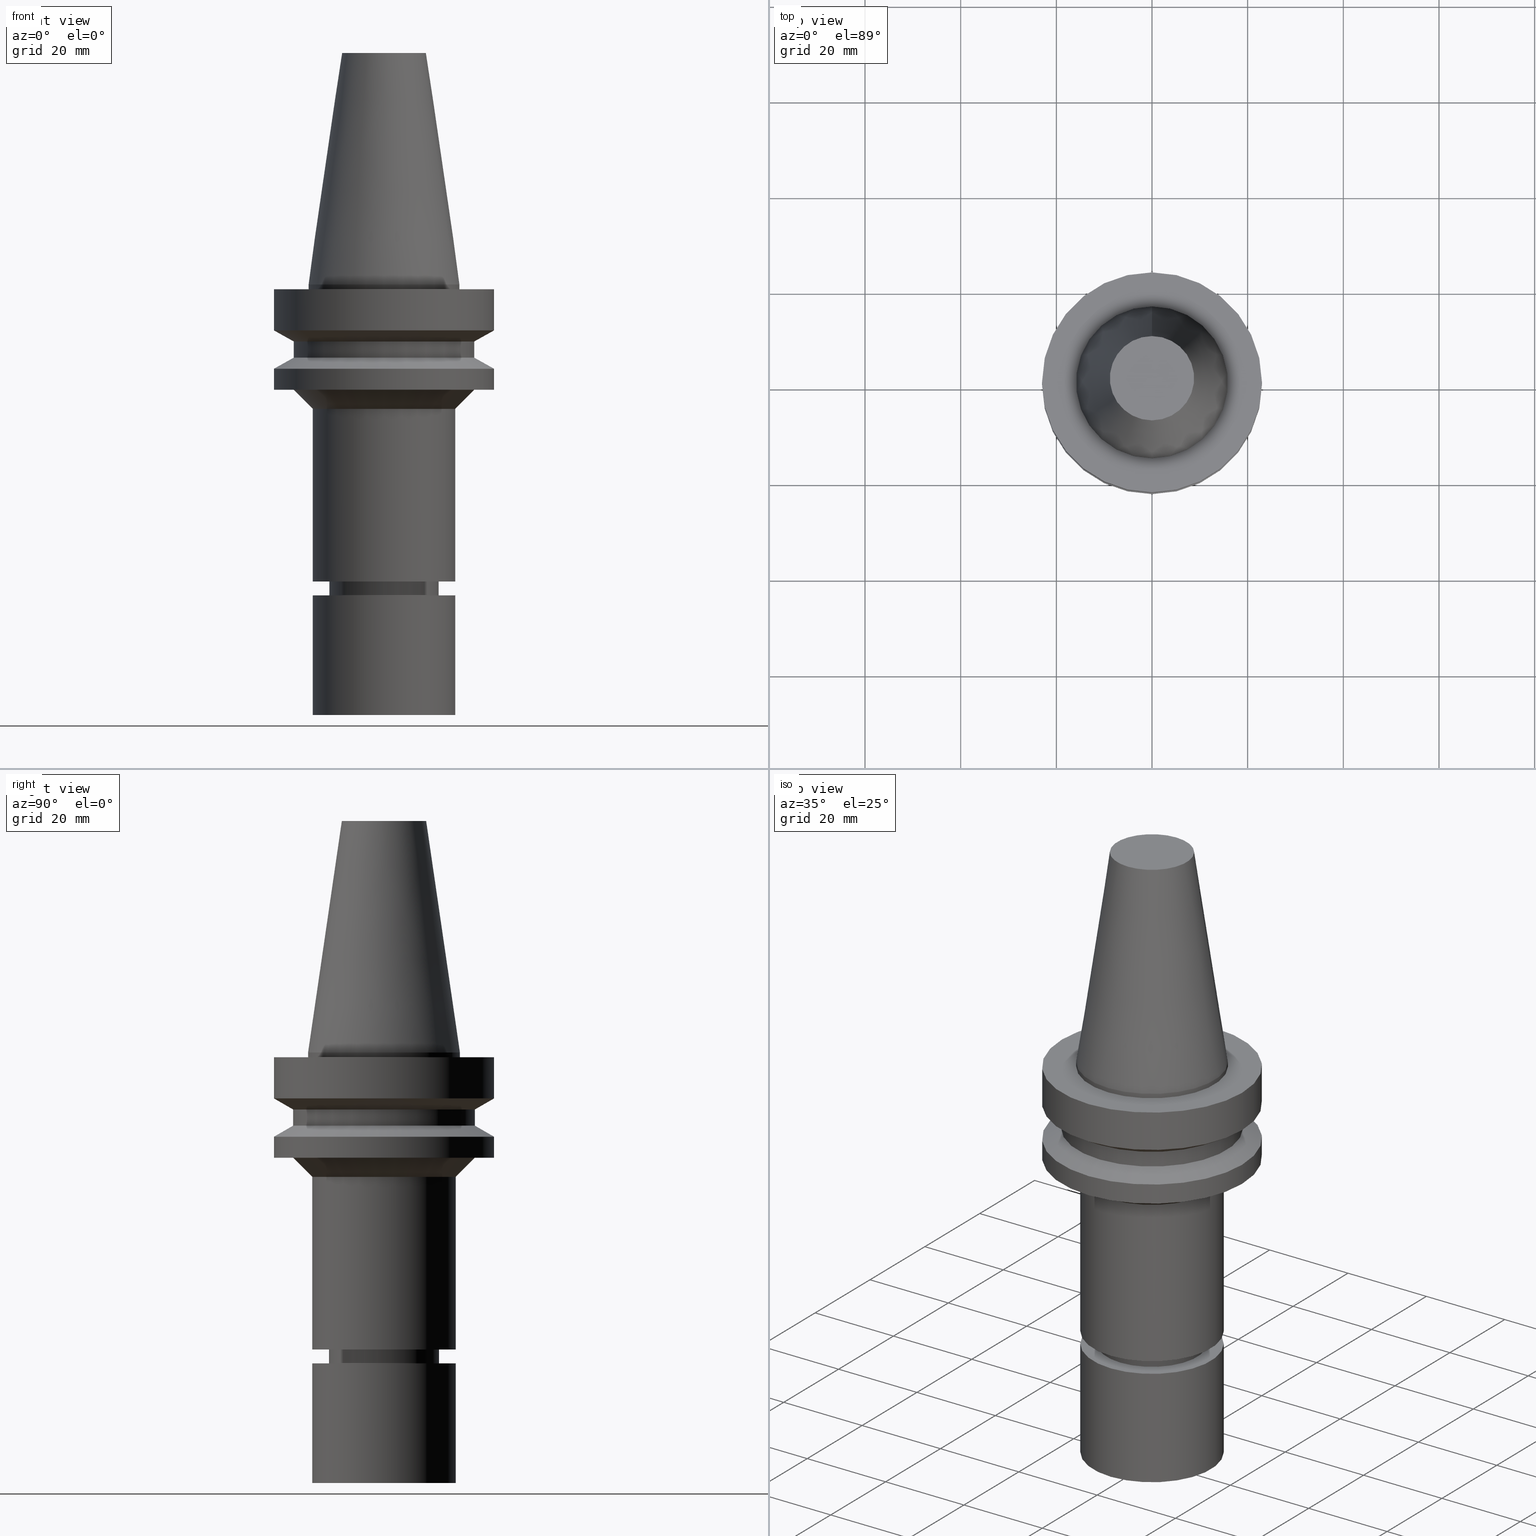
[diagram: canonical four-view strip — front | top / right | iso, engineering-drawing reading convention]
A machine part, canonical four-view strip (front | top / right | iso — engineering-drawing reading convention). The complete STEP part file that produces these views, byte-faithful:
ISO-10303-21;
HEADER;
FILE_DESCRIPTION((''),'1');
FILE_NAME('V:/90_\X2\53D65F9730C730FC30BF\X0\/00_\X2\6DE18DEF30C730FC30BF\X0\/ALL/BBT-BKUS\X2\FF76FF80FF9BFF78FF9E752852A05DE556F3\X0\201801/BBT30-MEGAER/BBT30-MEGAER16-90NL.stp','2018-02-02T07:11:08',(''),(''),'Spatial Interop R21 SP3','Kubotek KeyCreator 2011 V10.0.2 (22737)',' ');
FILE_SCHEMA(('automotive_design'));
ENDSEC;
DATA;
#1=MECHANICAL_DESIGN_GEOMETRIC_PRESENTATION_REPRESENTATION(' ',(#14,#15,#16,#17,#18,#19,#20,#21,#22,#23,#24,#25,#26,#27,#28,#29,#30,#31,#32,#33,#34,#35,#36,#37,#38,#39,#40,#41,#42,#43,#44,#45,#46,#47,#48,#49,#50,#51,#52,#53,#54,#55),#10);
#2=PRODUCT_DEFINITION_CONTEXT('',#56,'design');
#3=APPLICATION_PROTOCOL_DEFINITION('INTERNATIONAL STANDARD','automotive_design',1994,#56);
#4=PRODUCT_CATEGORY_RELATIONSHIP('NONE','NONE',#57,#58);
#5=SHAPE_DEFINITION_REPRESENTATION(#59,#60);
#6=PRODUCT_DEFINITION_CONTEXT('',#61,'design');
#7=APPLICATION_PROTOCOL_DEFINITION('INTERNATIONAL STANDARD','automotive_design',1994,#61);
#8=PRODUCT_CATEGORY_RELATIONSHIP('NONE','NONE',#62,#63);
#9=SHAPE_DEFINITION_REPRESENTATION(#64,#65);
#10= (GEOMETRIC_REPRESENTATION_CONTEXT(3)GLOBAL_UNCERTAINTY_ASSIGNED_CONTEXT((#68))GLOBAL_UNIT_ASSIGNED_CONTEXT((#70,#71,#72))REPRESENTATION_CONTEXT('NONE','WORKSPACE'));
#14=STYLED_ITEM('',(#74,#75),#76);
#15=STYLED_ITEM('',(#77),#78);
#16=STYLED_ITEM('',(#79),#80);
#17=STYLED_ITEM('',(#81,#82),#83);
#18=STYLED_ITEM('',(#84,#85),#86);
#19=STYLED_ITEM('',(#87,#88),#89);
#20=STYLED_ITEM('',(#90,#91),#92);
#21=STYLED_ITEM('',(#93,#94),#95);
#22=STYLED_ITEM('',(#96),#97);
#23=STYLED_ITEM('',(#98),#99);
#24=STYLED_ITEM('',(#100),#101);
#25=STYLED_ITEM('',(#102),#103);
#26=STYLED_ITEM('',(#104,#105),#106);
#27=STYLED_ITEM('',(#107,#108),#109);
#28=STYLED_ITEM('',(#110,#111),#112);
#29=STYLED_ITEM('',(#113),#114);
#30=STYLED_ITEM('',(#115),#116);
#31=STYLED_ITEM('',(#117,#118),#119);
#32=STYLED_ITEM('',(#120),#121);
#33=STYLED_ITEM('',(#122,#123),#124);
#34=STYLED_ITEM('',(#125,#126),#127);
#35=STYLED_ITEM('',(#128,#129),#130);
#36=STYLED_ITEM('',(#131),#132);
#37=STYLED_ITEM('',(#133,#134),#135);
#38=STYLED_ITEM('',(#136),#137);
#39=STYLED_ITEM('',(#138),#139);
#40=STYLED_ITEM('',(#140),#141);
#41=STYLED_ITEM('',(#142,#143),#144);
#42=STYLED_ITEM('',(#145,#146),#147);
#43=STYLED_ITEM('',(#148),#149);
#44=STYLED_ITEM('',(#150),#151);
#45=STYLED_ITEM('',(#152,#153),#154);
#46=STYLED_ITEM('',(#155),#156);
#47=STYLED_ITEM('',(#157),#158);
#48=STYLED_ITEM('',(#159,#160),#161);
#49=STYLED_ITEM('',(#162,#163),#164);
#50=STYLED_ITEM('',(#165,#166),#167);
#51=STYLED_ITEM('',(#168,#169),#170);
#52=STYLED_ITEM('',(#171),#172);
#53=STYLED_ITEM('',(#173,#174),#175);
#54=STYLED_ITEM('',(#176,#177),#178);
#55=STYLED_ITEM('',(#179),#180);
#56=APPLICATION_CONTEXT(' ');
#57=PRODUCT_CATEGORY('part','NONE');
#58=PRODUCT_RELATED_PRODUCT_CATEGORY('detail',' ',(#181));
#59=PRODUCT_DEFINITION_SHAPE('NONE','NONE',#182);
#60=ADVANCED_BREP_SHAPE_REPRESENTATION('Unnamed[1]',(#76,#183),#10);
#61=APPLICATION_CONTEXT(' ');
#62=PRODUCT_CATEGORY('part','NONE');
#63=PRODUCT_RELATED_PRODUCT_CATEGORY('detail',' ',(#184));
#64=PRODUCT_DEFINITION_SHAPE('NONE','NONE',#185);
#65=ADVANCED_BREP_SHAPE_REPRESENTATION('Unnamed[1]',(#154,#186),#10);
#68=UNCERTAINTY_MEASURE_WITH_UNIT(LENGTH_MEASURE(1.0E-006),#70,'','');
#70= (CONVERSION_BASED_UNIT('MILLIMETRE',#189)LENGTH_UNIT()NAMED_UNIT(#192));
#71= (NAMED_UNIT(#194)PLANE_ANGLE_UNIT()SI_UNIT($,.RADIAN.));
#72= (NAMED_UNIT(#194)SOLID_ANGLE_UNIT()SI_UNIT($,.STERADIAN.));
#74=PRESENTATION_STYLE_ASSIGNMENT((#200));
#75=PRESENTATION_STYLE_ASSIGNMENT((#201));
#76=MANIFOLD_SOLID_BREP('Unnamed[1]',#202);
#77=PRESENTATION_STYLE_ASSIGNMENT((#203));
#78=EDGE_CURVE('Unnamed[1]',#204,#204,#205,.T.);
#79=PRESENTATION_STYLE_ASSIGNMENT((#206));
#80=EDGE_CURVE('Unnamed[1]',#207,#207,#208,.T.);
#81=PRESENTATION_STYLE_ASSIGNMENT((#209));
#82=PRESENTATION_STYLE_ASSIGNMENT((#210));
#83=ADVANCED_FACE('Unnamed[1]',(#211,#212),#213,.T.);
#84=PRESENTATION_STYLE_ASSIGNMENT((#214));
#85=PRESENTATION_STYLE_ASSIGNMENT((#215));
#86=ADVANCED_FACE('Unnamed[1]',(#216,#217),#218,.T.);
#87=PRESENTATION_STYLE_ASSIGNMENT((#219));
#88=PRESENTATION_STYLE_ASSIGNMENT((#220));
#89=ADVANCED_FACE('Unnamed[1]',(#221,#222),#223,.T.);
#90=PRESENTATION_STYLE_ASSIGNMENT((#224));
#91=PRESENTATION_STYLE_ASSIGNMENT((#225));
#92=ADVANCED_FACE('Unnamed[1]',(#226,#227),#228,.T.);
#93=PRESENTATION_STYLE_ASSIGNMENT((#229));
#94=PRESENTATION_STYLE_ASSIGNMENT((#230));
#95=ADVANCED_FACE('Unnamed[1]',(#231),#232,.T.);
#96=PRESENTATION_STYLE_ASSIGNMENT((#233));
#97=EDGE_CURVE('Unnamed[1]',#234,#234,#235,.T.);
#98=PRESENTATION_STYLE_ASSIGNMENT((#236));
#99=EDGE_CURVE('Unnamed[1]',#237,#237,#238,.T.);
#100=PRESENTATION_STYLE_ASSIGNMENT((#239));
#101=EDGE_CURVE('Unnamed[1]',#240,#240,#241,.T.);
#102=PRESENTATION_STYLE_ASSIGNMENT((#242));
#103=EDGE_CURVE('Unnamed[1]',#243,#243,#244,.T.);
#104=PRESENTATION_STYLE_ASSIGNMENT((#245));
#105=PRESENTATION_STYLE_ASSIGNMENT((#246));
#106=ADVANCED_FACE('Unnamed[1]',(#247,#248),#249,.T.);
#107=PRESENTATION_STYLE_ASSIGNMENT((#250));
#108=PRESENTATION_STYLE_ASSIGNMENT((#251));
#109=ADVANCED_FACE('Unnamed[1]',(#252,#253),#254,.T.);
#110=PRESENTATION_STYLE_ASSIGNMENT((#255));
#111=PRESENTATION_STYLE_ASSIGNMENT((#256));
#112=ADVANCED_FACE('Unnamed[1]',(#257),#258,.T.);
#113=PRESENTATION_STYLE_ASSIGNMENT((#259));
#114=EDGE_CURVE('Unnamed[1]',#260,#260,#261,.T.);
#115=PRESENTATION_STYLE_ASSIGNMENT((#262));
#116=EDGE_CURVE('Unnamed[1]',#263,#263,#264,.T.);
#117=PRESENTATION_STYLE_ASSIGNMENT((#265));
#118=PRESENTATION_STYLE_ASSIGNMENT((#266));
#119=ADVANCED_FACE('Unnamed[1]',(#267,#268),#269,.T.);
#120=PRESENTATION_STYLE_ASSIGNMENT((#270));
#121=EDGE_CURVE('Unnamed[1]',#271,#271,#272,.T.);
#122=PRESENTATION_STYLE_ASSIGNMENT((#273));
#123=PRESENTATION_STYLE_ASSIGNMENT((#274));
#124=ADVANCED_FACE('Unnamed[1]',(#275,#276),#277,.T.);
#125=PRESENTATION_STYLE_ASSIGNMENT((#278));
#126=PRESENTATION_STYLE_ASSIGNMENT((#279));
#127=ADVANCED_FACE('Unnamed[1]',(#280,#281),#282,.T.);
#128=PRESENTATION_STYLE_ASSIGNMENT((#283));
#129=PRESENTATION_STYLE_ASSIGNMENT((#284));
#130=ADVANCED_FACE('Unnamed[1]',(#285,#286),#287,.T.);
#131=PRESENTATION_STYLE_ASSIGNMENT((#288));
#132=EDGE_CURVE('Unnamed[1]',#289,#289,#290,.T.);
#133=PRESENTATION_STYLE_ASSIGNMENT((#291));
#134=PRESENTATION_STYLE_ASSIGNMENT((#292));
#135=ADVANCED_FACE('Unnamed[1]',(#293,#294),#295,.T.);
#136=PRESENTATION_STYLE_ASSIGNMENT((#296));
#137=EDGE_CURVE('Unnamed[1]',#297,#297,#298,.T.);
#138=PRESENTATION_STYLE_ASSIGNMENT((#299));
#139=EDGE_CURVE('Unnamed[1]',#300,#300,#301,.T.);
#140=PRESENTATION_STYLE_ASSIGNMENT((#302));
#141=EDGE_CURVE('Unnamed[1]',#303,#303,#304,.T.);
#142=PRESENTATION_STYLE_ASSIGNMENT((#305));
#143=PRESENTATION_STYLE_ASSIGNMENT((#306));
#144=ADVANCED_FACE('Unnamed[1]',(#307,#308),#309,.T.);
#145=PRESENTATION_STYLE_ASSIGNMENT((#310));
#146=PRESENTATION_STYLE_ASSIGNMENT((#311));
#147=ADVANCED_FACE('Unnamed[1]',(#312,#313),#314,.T.);
#148=PRESENTATION_STYLE_ASSIGNMENT((#315));
#149=EDGE_CURVE('Unnamed[1]',#316,#316,#317,.T.);
#150=PRESENTATION_STYLE_ASSIGNMENT((#318));
#151=EDGE_CURVE('Unnamed[1]',#319,#319,#320,.T.);
#152=PRESENTATION_STYLE_ASSIGNMENT((#321));
#153=PRESENTATION_STYLE_ASSIGNMENT((#322));
#154=MANIFOLD_SOLID_BREP('Unnamed[1]',#323);
#155=PRESENTATION_STYLE_ASSIGNMENT((#324));
#156=EDGE_CURVE('Unnamed[1]',#325,#325,#326,.T.);
#157=PRESENTATION_STYLE_ASSIGNMENT((#327));
#158=EDGE_CURVE('Unnamed[1]',#328,#328,#329,.T.);
#159=PRESENTATION_STYLE_ASSIGNMENT((#330));
#160=PRESENTATION_STYLE_ASSIGNMENT((#331));
#161=ADVANCED_FACE('Unnamed[1]',(#332,#333),#334,.T.);
#162=PRESENTATION_STYLE_ASSIGNMENT((#335));
#163=PRESENTATION_STYLE_ASSIGNMENT((#336));
#164=ADVANCED_FACE('Unnamed[1]',(#337),#338,.T.);
#165=PRESENTATION_STYLE_ASSIGNMENT((#339));
#166=PRESENTATION_STYLE_ASSIGNMENT((#340));
#167=ADVANCED_FACE('Unnamed[1]',(#341,#342),#343,.T.);
#168=PRESENTATION_STYLE_ASSIGNMENT((#344));
#169=PRESENTATION_STYLE_ASSIGNMENT((#345));
#170=ADVANCED_FACE('Unnamed[1]',(#346,#347),#348,.T.);
#171=PRESENTATION_STYLE_ASSIGNMENT((#349));
#172=EDGE_CURVE('Unnamed[1]',#350,#350,#351,.T.);
#173=PRESENTATION_STYLE_ASSIGNMENT((#352));
#174=PRESENTATION_STYLE_ASSIGNMENT((#353));
#175=ADVANCED_FACE('Unnamed[1]',(#354),#355,.T.);
#176=PRESENTATION_STYLE_ASSIGNMENT((#356));
#177=PRESENTATION_STYLE_ASSIGNMENT((#357));
#178=ADVANCED_FACE('Unnamed[1]',(#358,#359),#360,.T.);
#179=PRESENTATION_STYLE_ASSIGNMENT((#361));
#180=EDGE_CURVE('Unnamed[1]',#362,#362,#363,.T.);
#181=PRODUCT('Unnamed[1]','Unnamed[1]','PART-Unnamed[1]-DESC',(#364));
#182=PRODUCT_DEFINITION('NONE','NONE',#365,#2);
#183=AXIS2_PLACEMENT_3D('',#366,#367,#368);
#184=PRODUCT('Unnamed[1]','Unnamed[1]','PART-Unnamed[1]-DESC',(#369));
#185=PRODUCT_DEFINITION('NONE','NONE',#370,#6);
#186=AXIS2_PLACEMENT_3D('',#371,#372,#373);
#189=LENGTH_MEASURE_WITH_UNIT(LENGTH_MEASURE(1.0),#374);
#192=DIMENSIONAL_EXPONENTS(1.0,0.0,0.0,0.0,0.0,0.0,0.0);
#194=DIMENSIONAL_EXPONENTS(0.0,0.0,0.0,0.0,0.0,0.0,0.0);
#200=SURFACE_STYLE_USAGE(.BOTH.,#375);
#201=CURVE_STYLE('',#376,POSITIVE_LENGTH_MEASURE(1000.0),#377);
#202=CLOSED_SHELL('',(#175,#178,#147,#167,#83,#127,#86,#144,#92,#106,#119,#161,#109,#130,#170,#89,#135,#95));
#203=CURVE_STYLE('',#378,POSITIVE_LENGTH_MEASURE(1000.0),#379);
#204=VERTEX_POINT('',#380);
#205=CIRCLE('',#381,9.89999999999962);
#206=CURVE_STYLE('',#382,POSITIVE_LENGTH_MEASURE(1000.0),#383);
#207=VERTEX_POINT('',#384);
#208=CIRCLE('',#385,15.0000000000002);
#209=SURFACE_STYLE_USAGE(.BOTH.,#386);
#210=CURVE_STYLE('',#387,POSITIVE_LENGTH_MEASURE(1000.0),#388);
#211=FACE_BOUND('',#389,.T.);
#212=FACE_BOUND('',#390,.T.);
#213=CYLINDRICAL_SURFACE('',#391,23.0);
#214=SURFACE_STYLE_USAGE(.BOTH.,#392);
#215=CURVE_STYLE('',#393,POSITIVE_LENGTH_MEASURE(1000.0),#394);
#216=FACE_BOUND('',#395,.T.);
#217=FACE_BOUND('',#396,.T.);
#218=CYLINDRICAL_SURFACE('',#397,19.0);
#219=SURFACE_STYLE_USAGE(.BOTH.,#398);
#220=CURVE_STYLE('',#399,POSITIVE_LENGTH_MEASURE(1000.0),#400);
#221=FACE_BOUND('',#401,.T.);
#222=FACE_BOUND('',#402,.T.);
#223=CYLINDRICAL_SURFACE('',#403,11.0000000000001);
#224=SURFACE_STYLE_USAGE(.BOTH.,#404);
#225=CURVE_STYLE('',#405,POSITIVE_LENGTH_MEASURE(1000.0),#406);
#226=FACE_BOUND('',#407,.T.);
#227=FACE_BOUND('',#408,.T.);
#228=CYLINDRICAL_SURFACE('',#409,23.0);
#229=SURFACE_STYLE_USAGE(.BOTH.,#410);
#230=CURVE_STYLE('',#411,POSITIVE_LENGTH_MEASURE(1000.0),#412);
#231=FACE_OUTER_BOUND('',#413,.T.);
#232=PLANE('',#414);
#233=CURVE_STYLE('',#415,POSITIVE_LENGTH_MEASURE(1000.0),#416);
#234=VERTEX_POINT('',#417);
#235=CIRCLE('',#418,19.0000000000002);
#236=CURVE_STYLE('',#419,POSITIVE_LENGTH_MEASURE(1000.0),#420);
#237=VERTEX_POINT('',#421);
#238=CIRCLE('',#422,11.5000000000021);
#239=CURVE_STYLE('',#423,POSITIVE_LENGTH_MEASURE(1000.0),#424);
#240=VERTEX_POINT('',#425);
#241=CIRCLE('',#426,19.0);
#242=CURVE_STYLE('',#427,POSITIVE_LENGTH_MEASURE(1000.0),#428);
#243=VERTEX_POINT('',#429);
#244=CIRCLE('',#430,23.0);
#245=SURFACE_STYLE_USAGE(.BOTH.,#431);
#246=CURVE_STYLE('',#432,POSITIVE_LENGTH_MEASURE(1000.0),#433);
#247=FACE_BOUND('',#434,.T.);
#248=FACE_OUTER_BOUND('',#435,.T.);
#249=PLANE('',#436);
#250=SURFACE_STYLE_USAGE(.BOTH.,#437);
#251=CURVE_STYLE('',#438,POSITIVE_LENGTH_MEASURE(1000.0),#439);
#252=FACE_BOUND('',#440,.T.);
#253=FACE_OUTER_BOUND('',#441,.T.);
#254=PLANE('',#442);
#255=SURFACE_STYLE_USAGE(.BOTH.,#443);
#256=CURVE_STYLE('',#444,POSITIVE_LENGTH_MEASURE(1000.0),#445);
#257=FACE_OUTER_BOUND('',#446,.T.);
#258=PLANE('',#447);
#259=CURVE_STYLE('',#448,POSITIVE_LENGTH_MEASURE(1000.0),#449);
#260=VERTEX_POINT('',#450);
#261=CIRCLE('',#451,15.0);
#262=CURVE_STYLE('',#452,POSITIVE_LENGTH_MEASURE(1000.0),#453);
#263=VERTEX_POINT('',#454);
#264=CIRCLE('',#455,11.0000000000003);
#265=SURFACE_STYLE_USAGE(.BOTH.,#456);
#266=CURVE_STYLE('',#457,POSITIVE_LENGTH_MEASURE(1000.0),#458);
#267=FACE_BOUND('',#459,.T.);
#268=FACE_BOUND('',#460,.T.);
#269=CONICAL_SURFACE('',#461,17.0000000000002,0.785398163397445);
#270=CURVE_STYLE('',#462,POSITIVE_LENGTH_MEASURE(1000.0),#463);
#271=VERTEX_POINT('',#464);
#272=CIRCLE('',#465,15.0000000000001);
#273=SURFACE_STYLE_USAGE(.BOTH.,#466);
#274=CURVE_STYLE('',#467,POSITIVE_LENGTH_MEASURE(1000.0),#468);
#275=FACE_BOUND('',#469,.T.);
#276=FACE_BOUND('',#470,.T.);
#277=CYLINDRICAL_SURFACE('',#471,15.0);
#278=SURFACE_STYLE_USAGE(.BOTH.,#472);
#279=CURVE_STYLE('',#473,POSITIVE_LENGTH_MEASURE(1000.0),#474);
#280=FACE_BOUND('',#475,.T.);
#281=FACE_BOUND('',#476,.T.);
#282=CONICAL_SURFACE('',#477,21.0,1.04719755058881);
#283=SURFACE_STYLE_USAGE(.BOTH.,#478);
#284=CURVE_STYLE('',#479,POSITIVE_LENGTH_MEASURE(1000.0),#480);
#285=FACE_BOUND('',#481,.T.);
#286=FACE_BOUND('',#482,.T.);
#287=CYLINDRICAL_SURFACE('',#483,11.4999999999964);
#288=CURVE_STYLE('',#484,POSITIVE_LENGTH_MEASURE(1000.0),#485);
#289=VERTEX_POINT('',#486);
#290=CIRCLE('',#487,23.0);
#291=SURFACE_STYLE_USAGE(.BOTH.,#488);
#292=CURVE_STYLE('',#489,POSITIVE_LENGTH_MEASURE(1000.0),#490);
#293=FACE_BOUND('',#491,.T.);
#294=FACE_BOUND('',#492,.T.);
#295=CONICAL_SURFACE('',#493,10.4499999999999,0.523598775598233);
#296=CURVE_STYLE('',#494,POSITIVE_LENGTH_MEASURE(1000.0),#495);
#297=VERTEX_POINT('',#496);
#298=CIRCLE('',#497,19.0);
#299=CURVE_STYLE('',#498,POSITIVE_LENGTH_MEASURE(1000.0),#499);
#300=VERTEX_POINT('',#500);
#301=CIRCLE('',#501,23.0);
#302=CURVE_STYLE('',#502,POSITIVE_LENGTH_MEASURE(1000.0),#503);
#303=VERTEX_POINT('',#504);
#304=CIRCLE('',#505,15.875);
#305=SURFACE_STYLE_USAGE(.BOTH.,#506);
#306=CURVE_STYLE('',#507,POSITIVE_LENGTH_MEASURE(1000.0),#508);
#307=FACE_BOUND('',#509,.T.);
#308=FACE_BOUND('',#510,.T.);
#309=CONICAL_SURFACE('',#511,21.0,1.04719755058882);
#310=SURFACE_STYLE_USAGE(.BOTH.,#512);
#311=CURVE_STYLE('',#513,POSITIVE_LENGTH_MEASURE(1000.0),#514);
#312=FACE_BOUND('',#515,.T.);
#313=FACE_BOUND('',#516,.T.);
#314=CYLINDRICAL_SURFACE('',#517,15.875);
#315=CURVE_STYLE('',#518,POSITIVE_LENGTH_MEASURE(1000.0),#519);
#316=VERTEX_POINT('',#520);
#317=CIRCLE('',#521,11.4999999999907);
#318=CURVE_STYLE('',#522,POSITIVE_LENGTH_MEASURE(1000.0),#523);
#319=VERTEX_POINT('',#524);
#320=CIRCLE('',#525,10.9999999999999);
#321=SURFACE_STYLE_USAGE(.BOTH.,#526);
#322=CURVE_STYLE('',#527,POSITIVE_LENGTH_MEASURE(1000.0),#528);
#323=CLOSED_SHELL('',(#112,#164,#124));
#324=CURVE_STYLE('',#529,POSITIVE_LENGTH_MEASURE(1000.0),#530);
#325=VERTEX_POINT('',#531);
#326=CIRCLE('',#532,8.81650000198669);
#327=CURVE_STYLE('',#533,POSITIVE_LENGTH_MEASURE(1000.0),#534);
#328=VERTEX_POINT('',#535);
#329=CIRCLE('',#536,23.0);
#330=SURFACE_STYLE_USAGE(.BOTH.,#537);
#331=CURVE_STYLE('',#538,POSITIVE_LENGTH_MEASURE(1000.0),#539);
#332=FACE_BOUND('',#540,.T.);
#333=FACE_BOUND('',#541,.T.);
#334=CYLINDRICAL_SURFACE('',#542,15.0000000000002);
#335=SURFACE_STYLE_USAGE(.BOTH.,#543);
#336=CURVE_STYLE('',#544,POSITIVE_LENGTH_MEASURE(1000.0),#545);
#337=FACE_OUTER_BOUND('',#546,.T.);
#338=PLANE('',#547);
#339=SURFACE_STYLE_USAGE(.BOTH.,#548);
#340=CURVE_STYLE('',#549,POSITIVE_LENGTH_MEASURE(1000.0),#550);
#341=FACE_OUTER_BOUND('',#551,.T.);
#342=FACE_BOUND('',#552,.T.);
#343=PLANE('',#553);
#344=SURFACE_STYLE_USAGE(.BOTH.,#554);
#345=CURVE_STYLE('',#555,POSITIVE_LENGTH_MEASURE(1000.0),#556);
#346=FACE_BOUND('',#557,.T.);
#347=FACE_BOUND('',#558,.T.);
#348=CONICAL_SURFACE('',#559,11.250000000001,1.04719755118906);
#349=CURVE_STYLE('',#560,POSITIVE_LENGTH_MEASURE(1000.0),#561);
#350=VERTEX_POINT('',#562);
#351=CIRCLE('',#563,15.875);
#352=SURFACE_STYLE_USAGE(.BOTH.,#564);
#353=CURVE_STYLE('',#565,POSITIVE_LENGTH_MEASURE(1000.0),#566);
#354=FACE_OUTER_BOUND('',#567,.T.);
#355=PLANE('',#568);
#356=SURFACE_STYLE_USAGE(.BOTH.,#569);
#357=CURVE_STYLE('',#570,POSITIVE_LENGTH_MEASURE(1000.0),#571);
#358=FACE_BOUND('',#572,.T.);
#359=FACE_BOUND('',#573,.T.);
#360=CONICAL_SURFACE('',#574,12.3457500009933,0.144815870013618);
#361=CURVE_STYLE('',#575,POSITIVE_LENGTH_MEASURE(1000.0),#576);
#362=VERTEX_POINT('',#577);
#363=CIRCLE('',#578,15.0000000000003);
#364=PRODUCT_CONTEXT('',#56,'mechanical');
#365=PRODUCT_DEFINITION_FORMATION_WITH_SPECIFIED_SOURCE(' ','NONE',#181,.NOT_KNOWN.);
#366=CARTESIAN_POINT('',(0.0,0.0,0.0));
#367=DIRECTION('',(0.0,0.0,1.0));
#368=DIRECTION('',(1.0,0.0,0.0));
#369=PRODUCT_CONTEXT('',#61,'mechanical');
#370=PRODUCT_DEFINITION_FORMATION_WITH_SPECIFIED_SOURCE(' ','NONE',#184,.NOT_KNOWN.);
#371=CARTESIAN_POINT('',(0.0,0.0,0.0));
#372=DIRECTION('',(0.0,0.0,1.0));
#373=DIRECTION('',(1.0,0.0,0.0));
#374= (NAMED_UNIT(#192)LENGTH_UNIT()SI_UNIT(.MILLI.,.METRE.));
#375=SURFACE_SIDE_STYLE('',(#580));
#376=DRAUGHTING_PRE_DEFINED_CURVE_FONT('continuous');
#377=COLOUR_RGB('',0.0,1.0,0.0);
#378=DRAUGHTING_PRE_DEFINED_CURVE_FONT('continuous');
#379=COLOUR_RGB('',0.0,1.0,0.0);
#380=CARTESIAN_POINT('',(4.9720660045382E-015,9.89999999999963,-81.1999999999991));
#381=AXIS2_PLACEMENT_3D('',#581,#582,#583);
#382=DRAUGHTING_PRE_DEFINED_CURVE_FONT('continuous');
#383=COLOUR_RGB('',0.0,1.0,0.0);
#384=CARTESIAN_POINT('',(3.80252831135249E-015,15.0000000000002,-62.0999999999994));
#385=AXIS2_PLACEMENT_3D('',#584,#585,#586);
#386=SURFACE_SIDE_STYLE('',(#587));
#387=DRAUGHTING_PRE_DEFINED_CURVE_FONT('continuous');
#388=COLOUR_RGB('',0.0,1.0,0.0);
#389=EDGE_LOOP('',(#588));
#390=EDGE_LOOP('',(#589));
#391=AXIS2_PLACEMENT_3D('',#590,#591,#592);
#392=SURFACE_SIDE_STYLE('',(#593));
#393=DRAUGHTING_PRE_DEFINED_CURVE_FONT('continuous');
#394=COLOUR_RGB('',0.0,1.0,0.0);
#395=EDGE_LOOP('',(#594));
#396=EDGE_LOOP('',(#595));
#397=AXIS2_PLACEMENT_3D('',#596,#597,#598);
#398=SURFACE_SIDE_STYLE('',(#599));
#399=DRAUGHTING_PRE_DEFINED_CURVE_FONT('continuous');
#400=COLOUR_RGB('',0.0,1.0,0.0);
#401=EDGE_LOOP('',(#600));
#402=EDGE_LOOP('',(#601));
#403=AXIS2_PLACEMENT_3D('',#602,#603,#604);
#404=SURFACE_SIDE_STYLE('',(#605));
#405=DRAUGHTING_PRE_DEFINED_CURVE_FONT('continuous');
#406=COLOUR_RGB('',0.0,1.0,0.0);
#407=EDGE_LOOP('',(#606));
#408=EDGE_LOOP('',(#607));
#409=AXIS2_PLACEMENT_3D('',#608,#609,#610);
#410=SURFACE_SIDE_STYLE('',(#611));
#411=DRAUGHTING_PRE_DEFINED_CURVE_FONT('continuous');
#412=COLOUR_RGB('',0.0,1.0,0.0);
#413=EDGE_LOOP('',(#612));
#414=AXIS2_PLACEMENT_3D('',#613,#614,#615);
#415=DRAUGHTING_PRE_DEFINED_CURVE_FONT('continuous');
#416=COLOUR_RGB('',0.0,1.0,0.0);
#417=CARTESIAN_POINT('',(1.34711147906209E-015,19.0000000000002,-22.0));
#418=AXIS2_PLACEMENT_3D('',#616,#617,#618);
#419=DRAUGHTING_PRE_DEFINED_CURVE_FONT('continuous');
#420=COLOUR_RGB('',0.0,1.0,0.0);
#421=CARTESIAN_POINT('',(4.15836933111325E-015,11.5000000000021,-67.9113248653974));
#422=AXIS2_PLACEMENT_3D('',#619,#620,#621);
#423=DRAUGHTING_PRE_DEFINED_CURVE_FONT('continuous');
#424=COLOUR_RGB('',0.0,1.0,0.0);
#425=CARTESIAN_POINT('',(9.36279151221199E-016,19.0,-15.29059892));
#426=AXIS2_PLACEMENT_3D('',#622,#623,#624);
#427=DRAUGHTING_PRE_DEFINED_CURVE_FONT('continuous');
#428=COLOUR_RGB('',0.0,1.0,0.0);
#429=CARTESIAN_POINT('',(1.07768918324967E-015,23.0,-17.6));
#430=AXIS2_PLACEMENT_3D('',#625,#626,#627);
#431=SURFACE_SIDE_STYLE('',(#628));
#432=DRAUGHTING_PRE_DEFINED_CURVE_FONT('continuous');
#433=COLOUR_RGB('',0.0,1.0,0.0);
#434=EDGE_LOOP('',(#629));
#435=EDGE_LOOP('',(#630));
#436=AXIS2_PLACEMENT_3D('',#631,#632,#633);
#437=SURFACE_SIDE_STYLE('',(#634));
#438=DRAUGHTING_PRE_DEFINED_CURVE_FONT('continuous');
#439=COLOUR_RGB('',0.0,1.0,0.0);
#440=EDGE_LOOP('',(#635));
#441=EDGE_LOOP('',(#636));
#442=AXIS2_PLACEMENT_3D('',#637,#638,#639);
#443=SURFACE_SIDE_STYLE('',(#640));
#444=DRAUGHTING_PRE_DEFINED_CURVE_FONT('continuous');
#445=COLOUR_RGB('',0.0,1.0,0.0);
#446=EDGE_LOOP('',(#641));
#447=AXIS2_PLACEMENT_3D('',#642,#643,#644);
#448=DRAUGHTING_PRE_DEFINED_CURVE_FONT('continuous');
#449=COLOUR_RGB('',0.0,1.0,0.0);
#450=CARTESIAN_POINT('',(5.51091059616309E-015,15.0,-90.0));
#451=AXIS2_PLACEMENT_3D('',#645,#646,#647);
#452=DRAUGHTING_PRE_DEFINED_CURVE_FONT('continuous');
#453=COLOUR_RGB('',0.0,1.0,0.0);
#454=CARTESIAN_POINT('',(4.85540272827837E-015,11.0000000000003,-79.2947441116719));
#455=AXIS2_PLACEMENT_3D('',#648,#649,#650);
#456=SURFACE_SIDE_STYLE('',(#651));
#457=DRAUGHTING_PRE_DEFINED_CURVE_FONT('continuous');
#458=COLOUR_RGB('',0.0,1.0,0.0);
#459=EDGE_LOOP('',(#652));
#460=EDGE_LOOP('',(#653));
#461=AXIS2_PLACEMENT_3D('',#654,#655,#656);
#462=DRAUGHTING_PRE_DEFINED_CURVE_FONT('continuous');
#463=COLOUR_RGB('',0.0,1.0,0.0);
#464=CARTESIAN_POINT('',(3.9801020972289E-015,15.0000000000001,-65.0));
#465=AXIS2_PLACEMENT_3D('',#657,#658,#659);
#466=SURFACE_SIDE_STYLE('',(#660));
#467=DRAUGHTING_PRE_DEFINED_CURVE_FONT('continuous');
#468=COLOUR_RGB('',0.0,1.0,0.0);
#469=EDGE_LOOP('',(#661));
#470=EDGE_LOOP('',(#662));
#471=AXIS2_PLACEMENT_3D('',#663,#664,#665);
#472=SURFACE_SIDE_STYLE('',(#666));
#473=DRAUGHTING_PRE_DEFINED_CURVE_FONT('continuous');
#474=COLOUR_RGB('',0.0,1.0,0.0);
#475=EDGE_LOOP('',(#667));
#476=EDGE_LOOP('',(#668));
#477=AXIS2_PLACEMENT_3D('',#669,#670,#671);
#478=SURFACE_SIDE_STYLE('',(#672));
#479=DRAUGHTING_PRE_DEFINED_CURVE_FONT('continuous');
#480=COLOUR_RGB('',0.0,1.0,0.0);
#481=EDGE_LOOP('',(#673));
#482=EDGE_LOOP('',(#674));
#483=AXIS2_PLACEMENT_3D('',#675,#676,#677);
#484=DRAUGHTING_PRE_DEFINED_CURVE_FONT('continuous');
#485=COLOUR_RGB('',0.0,1.0,0.0);
#486=CARTESIAN_POINT('',(1.34711147906209E-015,23.0,-22.0));
#487=AXIS2_PLACEMENT_3D('',#678,#679,#680);
#488=SURFACE_SIDE_STYLE('',(#681));
#489=DRAUGHTING_PRE_DEFINED_CURVE_FONT('continuous');
#490=COLOUR_RGB('',0.0,1.0,0.0);
#491=EDGE_LOOP('',(#682));
#492=EDGE_LOOP('',(#683));
#493=AXIS2_PLACEMENT_3D('',#684,#685,#686);
#494=DRAUGHTING_PRE_DEFINED_CURVE_FONT('continuous');
#495=COLOUR_RGB('',0.0,1.0,0.0);
#496=CARTESIAN_POINT('',(7.29240495619202E-016,19.0,-11.90940108));
#497=AXIS2_PLACEMENT_3D('',#687,#688,#689);
#498=DRAUGHTING_PRE_DEFINED_CURVE_FONT('continuous');
#499=COLOUR_RGB('',0.0,1.0,0.0);
#500=CARTESIAN_POINT('',(5.87830463590729E-016,23.0,-9.59999999999999));
#501=AXIS2_PLACEMENT_3D('',#690,#691,#692);
#502=DRAUGHTING_PRE_DEFINED_CURVE_FONT('continuous');
#503=COLOUR_RGB('',0.0,1.0,0.0);
#504=CARTESIAN_POINT('',(6.12323399573675E-017,15.875,-0.999999999999998));
#505=AXIS2_PLACEMENT_3D('',#693,#694,#695);
#506=SURFACE_SIDE_STYLE('',(#696));
#507=DRAUGHTING_PRE_DEFINED_CURVE_FONT('continuous');
#508=COLOUR_RGB('',0.0,1.0,0.0);
#509=EDGE_LOOP('',(#697));
#510=EDGE_LOOP('',(#698));
#511=AXIS2_PLACEMENT_3D('',#699,#700,#701);
#512=SURFACE_SIDE_STYLE('',(#702));
#513=DRAUGHTING_PRE_DEFINED_CURVE_FONT('continuous');
#514=COLOUR_RGB('',0.0,1.0,0.0);
#515=EDGE_LOOP('',(#703));
#516=EDGE_LOOP('',(#704));
#517=AXIS2_PLACEMENT_3D('',#705,#706,#707);
#518=DRAUGHTING_PRE_DEFINED_CURVE_FONT('continuous');
#519=COLOUR_RGB('',0.0,1.0,0.0);
#520=CARTESIAN_POINT('',(3.80252831135254E-015,11.4999999999907,-62.1000000000001));
#521=AXIS2_PLACEMENT_3D('',#708,#709,#710);
#522=DRAUGHTING_PRE_DEFINED_CURVE_FONT('continuous');
#523=COLOUR_RGB('',0.0,1.0,0.0);
#524=CARTESIAN_POINT('',(4.17604558509238E-015,10.9999999999999,-68.1999999999985));
#525=AXIS2_PLACEMENT_3D('',#711,#712,#713);
#526=SURFACE_SIDE_STYLE('',(#714));
#527=DRAUGHTING_PRE_DEFINED_CURVE_FONT('continuous');
#528=COLOUR_RGB('',0.0,1.0,0.0);
#529=DRAUGHTING_PRE_DEFINED_CURVE_FONT('continuous');
#530=COLOUR_RGB('',0.0,1.0,0.0);
#531=CARTESIAN_POINT('',(-2.96364525393659E-015,8.81650000198669,48.4));
#532=AXIS2_PLACEMENT_3D('',#715,#716,#717);
#533=DRAUGHTING_PRE_DEFINED_CURVE_FONT('continuous');
#534=COLOUR_RGB('',0.0,1.0,0.0);
#535=CARTESIAN_POINT('',(6.12323399573674E-017,23.0,-0.999999999999997));
#536=AXIS2_PLACEMENT_3D('',#718,#719,#720);
#537=SURFACE_SIDE_STYLE('',(#721));
#538=DRAUGHTING_PRE_DEFINED_CURVE_FONT('continuous');
#539=COLOUR_RGB('',0.0,1.0,0.0);
#540=EDGE_LOOP('',(#722));
#541=EDGE_LOOP('',(#723));
#542=AXIS2_PLACEMENT_3D('',#724,#725,#726);
#543=SURFACE_SIDE_STYLE('',(#727));
#544=DRAUGHTING_PRE_DEFINED_CURVE_FONT('continuous');
#545=COLOUR_RGB('',0.0,1.0,0.0);
#546=EDGE_LOOP('',(#728));
#547=AXIS2_PLACEMENT_3D('',#729,#730,#731);
#548=SURFACE_SIDE_STYLE('',(#732));
#549=DRAUGHTING_PRE_DEFINED_CURVE_FONT('continuous');
#550=COLOUR_RGB('',0.0,1.0,0.0);
#551=EDGE_LOOP('',(#733));
#552=EDGE_LOOP('',(#734));
#553=AXIS2_PLACEMENT_3D('',#735,#736,#737);
#554=SURFACE_SIDE_STYLE('',(#738));
#555=DRAUGHTING_PRE_DEFINED_CURVE_FONT('continuous');
#556=COLOUR_RGB('',0.0,1.0,0.0);
#557=EDGE_LOOP('',(#739));
#558=EDGE_LOOP('',(#740));
#559=AXIS2_PLACEMENT_3D('',#741,#742,#743);
#560=DRAUGHTING_PRE_DEFINED_CURVE_FONT('continuous');
#561=COLOUR_RGB('',0.0,1.0,0.0);
#562=CARTESIAN_POINT('',(-1.95674482349743E-031,15.875,1.94412679364642E-015));
#563=AXIS2_PLACEMENT_3D('',#744,#745,#746);
#564=SURFACE_SIDE_STYLE('',(#747));
#565=DRAUGHTING_PRE_DEFINED_CURVE_FONT('continuous');
#566=COLOUR_RGB('',0.0,1.0,0.0);
#567=EDGE_LOOP('',(#748));
#568=AXIS2_PLACEMENT_3D('',#749,#750,#751);
#569=SURFACE_SIDE_STYLE('',(#752));
#570=DRAUGHTING_PRE_DEFINED_CURVE_FONT('continuous');
#571=COLOUR_RGB('',0.0,1.0,0.0);
#572=EDGE_LOOP('',(#753));
#573=EDGE_LOOP('',(#754));
#574=AXIS2_PLACEMENT_3D('',#755,#756,#757);
#575=DRAUGHTING_PRE_DEFINED_CURVE_FONT('continuous');
#576=COLOUR_RGB('',0.0,1.0,0.0);
#577=CARTESIAN_POINT('',(1.59204083889156E-015,15.0000000000003,-26.0));
#578=AXIS2_PLACEMENT_3D('',#758,#759,#760);
#580=SURFACE_STYLE_FILL_AREA(#761);
#581=CARTESIAN_POINT('',(4.9720660045382E-015,9.94413200907639E-015,-81.1999999999991));
#582=DIRECTION('',(6.12323399573677E-017,1.22464679914681E-016,-1.0));
#583=DIRECTION('',(-1.23259516440806E-032,1.0,1.22464679914681E-016));
#584=CARTESIAN_POINT('',(3.80252831135249E-015,7.60505662270498E-015,-62.0999999999994));
#585=DIRECTION('',(6.12323399573677E-017,1.22464679914799E-016,-1.0));
#586=DIRECTION('',(-1.23259516440781E-032,1.0,1.22464679914799E-016));
#587=SURFACE_STYLE_FILL_AREA(#762);
#588=ORIENTED_EDGE('',*,*,#139,.F.);
#589=ORIENTED_EDGE('',*,*,#158,.T.);
#590=CARTESIAN_POINT('',(3.24531401774048E-016,6.49062803548097E-016,-5.3));
#591=DIRECTION('',(6.12323399573677E-017,1.22464679914716E-016,-1.0));
#592=DIRECTION('',(-1.23259516440783E-032,1.0,1.22464679914716E-016));
#593=SURFACE_STYLE_FILL_AREA(#763);
#594=ORIENTED_EDGE('',*,*,#101,.F.);
#595=ORIENTED_EDGE('',*,*,#137,.T.);
#596=CARTESIAN_POINT('',(8.32759823420201E-016,1.6655196468404E-015,-13.6));
#597=DIRECTION('',(6.12323399573677E-017,1.22464679914665E-016,-1.0));
#598=DIRECTION('',(-1.23259516440783E-032,1.0,1.22464679914665E-016));
#599=SURFACE_STYLE_FILL_AREA(#764);
#600=ORIENTED_EDGE('',*,*,#116,.F.);
#601=ORIENTED_EDGE('',*,*,#151,.T.);
#602=CARTESIAN_POINT('',(4.51572415668538E-015,9.03144831337075E-015,-73.7473720558352));
#603=DIRECTION('',(6.12323399573677E-017,1.22464679914741E-016,-1.0));
#604=DIRECTION('',(-1.23259516440782E-032,1.0,1.22464679914741E-016));
#605=SURFACE_STYLE_FILL_AREA(#765);
#606=ORIENTED_EDGE('',*,*,#132,.F.);
#607=ORIENTED_EDGE('',*,*,#103,.T.);
#608=CARTESIAN_POINT('',(1.21240033115588E-015,2.42480066231176E-015,-19.8));
#609=DIRECTION('',(6.12323399573677E-017,1.22464679914716E-016,-1.0));
#610=DIRECTION('',(-1.23259516440783E-032,1.0,1.22464679914716E-016));
#611=SURFACE_STYLE_FILL_AREA(#766);
#612=ORIENTED_EDGE('',*,*,#78,.T.);
#613=CARTESIAN_POINT('',(4.97206600453822E-015,4.94999999999982,-81.1999999999995));
#614=DIRECTION('',(6.12323399573677E-017,8.19425372825961E-014,-1.0));
#615=DIRECTION('',(-5.02236045258797E-030,1.0,8.19425372825961E-014));
#616=CARTESIAN_POINT('',(1.34711147906209E-015,2.69422295812418E-015,-22.0));
#617=DIRECTION('',(6.12323399573677E-017,1.22464679914663E-016,-1.0));
#618=DIRECTION('',(-1.23259516440782E-032,1.0,1.22464679914663E-016));
#619=CARTESIAN_POINT('',(4.15836933111325E-015,8.31673866222649E-015,-67.9113248653974));
#620=DIRECTION('',(6.12323399573676E-017,1.22464679914694E-016,-1.0));
#621=DIRECTION('',(-1.23259516440761E-032,1.0,1.22464679914694E-016));
#622=CARTESIAN_POINT('',(9.36279151221199E-016,1.8725583024424E-015,-15.29059892));
#623=DIRECTION('',(6.12323399573677E-017,1.22464679914665E-016,-1.0));
#624=DIRECTION('',(-1.23259516440783E-032,1.0,1.22464679914665E-016));
#625=CARTESIAN_POINT('',(1.07768918324967E-015,2.15537836649934E-015,-17.6));
#626=DIRECTION('',(6.12323399573677E-017,1.22464679914716E-016,-1.0));
#627=DIRECTION('',(-1.23259516440783E-032,1.0,1.22464679914716E-016));
#628=SURFACE_STYLE_FILL_AREA(#767);
#629=ORIENTED_EDGE('',*,*,#97,.F.);
#630=ORIENTED_EDGE('',*,*,#132,.T.);
#631=CARTESIAN_POINT('',(1.34711147906209E-015,21.0000000000001,-22.0));
#632=DIRECTION('',(6.12323399573677E-017,1.22464679914735E-016,-1.0));
#633=DIRECTION('',(-1.23259516440783E-032,1.0,1.22464679914735E-016));
#634=SURFACE_STYLE_FILL_AREA(#768);
#635=ORIENTED_EDGE('',*,*,#149,.F.);
#636=ORIENTED_EDGE('',*,*,#80,.T.);
#637=CARTESIAN_POINT('',(3.80252831135251E-015,13.2499999999955,-62.0999999999997));
#638=DIRECTION('',(6.12323399573677E-017,2.03134674896534E-013,-1.0));
#639=DIRECTION('',(-1.24432386231247E-029,1.0,2.03134674896534E-013));
#640=SURFACE_STYLE_FILL_AREA(#769);
#641=ORIENTED_EDGE('',*,*,#114,.T.);
#642=CARTESIAN_POINT('',(5.51091059616309E-015,7.50000000000001,-90.0));
#643=DIRECTION('',(6.12323399573677E-017,1.22464679914735E-016,-1.0));
#644=DIRECTION('',(-1.23259516440783E-032,1.0,1.22464679914735E-016));
#645=CARTESIAN_POINT('',(5.51091059616309E-015,1.10218211923262E-014,-90.0));
#646=DIRECTION('',(6.12323399573677E-017,1.22464679914735E-016,-1.0));
#647=DIRECTION('',(-1.23259516440783E-032,1.0,1.22464679914735E-016));
#648=CARTESIAN_POINT('',(4.85540272827837E-015,9.71080545655675E-015,-79.2947441116719));
#649=DIRECTION('',(6.12323399573676E-017,1.22464679914739E-016,-1.0));
#650=DIRECTION('',(-1.2325951644078E-032,1.0,1.22464679914739E-016));
#651=SURFACE_STYLE_FILL_AREA(#770);
#652=ORIENTED_EDGE('',*,*,#180,.F.);
#653=ORIENTED_EDGE('',*,*,#97,.T.);
#654=CARTESIAN_POINT('',(1.46957615897682E-015,2.93915231795365E-015,-24.0));
#655=DIRECTION('',(-6.12323399573676E-017,-1.22464679914723E-016,1.0));
#656=DIRECTION('',(-1.23259516440781E-032,1.0,1.22464679914723E-016));
#657=CARTESIAN_POINT('',(3.9801020972289E-015,7.9602041944578E-015,-65.0));
#658=DIRECTION('',(6.12323399573677E-017,1.22464679914735E-016,-1.0));
#659=DIRECTION('',(-1.23259516440783E-032,1.0,1.22464679914735E-016));
#660=SURFACE_STYLE_FILL_AREA(#771);
#661=ORIENTED_EDGE('',*,*,#114,.F.);
#662=ORIENTED_EDGE('',*,*,#121,.T.);
#663=CARTESIAN_POINT('',(4.745506346696E-015,9.49101269339199E-015,-77.5));
#664=DIRECTION('',(6.12323399573677E-017,1.22464679914735E-016,-1.0));
#665=DIRECTION('',(-1.23259516440783E-032,1.0,1.22464679914735E-016));
#666=SURFACE_STYLE_FILL_AREA(#772);
#667=ORIENTED_EDGE('',*,*,#137,.F.);
#668=ORIENTED_EDGE('',*,*,#139,.T.);
#669=CARTESIAN_POINT('',(6.58535479604966E-016,1.31707095920993E-015,-10.75470054));
#670=DIRECTION('',(-6.12323399573677E-017,-1.2246467991477E-016,1.0));
#671=DIRECTION('',(-1.23259516440783E-032,1.0,1.2246467991477E-016));
#672=SURFACE_STYLE_FILL_AREA(#773);
#673=ORIENTED_EDGE('',*,*,#99,.F.);
#674=ORIENTED_EDGE('',*,*,#149,.T.);
#675=CARTESIAN_POINT('',(3.98044882123289E-015,7.96089764246578E-015,-65.0056624326987));
#676=DIRECTION('',(6.12323399573676E-017,1.22464679914755E-016,-1.0));
#677=DIRECTION('',(-1.23259516440822E-032,1.0,1.22464679914755E-016));
#678=CARTESIAN_POINT('',(1.34711147906209E-015,2.69422295812418E-015,-22.0));
#679=DIRECTION('',(6.12323399573677E-017,1.22464679914716E-016,-1.0));
#680=DIRECTION('',(-1.23259516440783E-032,1.0,1.22464679914716E-016));
#681=SURFACE_STYLE_FILL_AREA(#774);
#682=ORIENTED_EDGE('',*,*,#78,.F.);
#683=ORIENTED_EDGE('',*,*,#116,.T.);
#684=CARTESIAN_POINT('',(4.91373436640829E-015,9.82746873281657E-015,-80.2473720558355));
#685=DIRECTION('',(-6.12323399573677E-017,-1.22464679914712E-016,1.0));
#686=DIRECTION('',(-1.2325951644075E-032,1.0,1.22464679914712E-016));
#687=CARTESIAN_POINT('',(7.29240495619202E-016,1.4584809912384E-015,-11.90940108));
#688=DIRECTION('',(6.12323399573677E-017,1.22464679914665E-016,-1.0));
#689=DIRECTION('',(-1.23259516440783E-032,1.0,1.22464679914665E-016));
#690=CARTESIAN_POINT('',(5.87830463590729E-016,1.17566092718146E-015,-9.59999999999999));
#691=DIRECTION('',(6.12323399573677E-017,1.22464679914716E-016,-1.0));
#692=DIRECTION('',(-1.23259516440783E-032,1.0,1.22464679914716E-016));
#693=CARTESIAN_POINT('',(6.12323399573677E-017,1.22464679914735E-016,-1.0));
#694=DIRECTION('',(6.12323399573677E-017,1.22464679914816E-016,-1.0));
#695=DIRECTION('',(-1.23259516440783E-032,1.0,1.22464679914816E-016));
#696=SURFACE_STYLE_FILL_AREA(#775);
#697=ORIENTED_EDGE('',*,*,#103,.F.);
#698=ORIENTED_EDGE('',*,*,#101,.T.);
#699=CARTESIAN_POINT('',(1.00698416723543E-015,2.01396833447087E-015,-16.44529946));
#700=DIRECTION('',(6.12323399573677E-017,1.2246467991477E-016,-1.0));
#701=DIRECTION('',(-1.23259516440783E-032,1.0,1.2246467991477E-016));
#702=SURFACE_STYLE_FILL_AREA(#776);
#703=ORIENTED_EDGE('',*,*,#141,.F.);
#704=ORIENTED_EDGE('',*,*,#172,.T.);
#705=CARTESIAN_POINT('',(3.06161699786838E-017,6.12323399573676E-017,-0.5));
#706=DIRECTION('',(6.12323399573677E-017,1.22464679914816E-016,-1.0));
#707=DIRECTION('',(-1.23259516440783E-032,1.0,1.22464679914816E-016));
#708=CARTESIAN_POINT('',(3.80252831135254E-015,7.60505662270507E-015,-62.1000000000001));
#709=DIRECTION('',(6.12323399573677E-017,1.22464679914675E-016,-1.0));
#710=DIRECTION('',(-1.23259516440727E-032,1.0,1.22464679914675E-016));
#711=CARTESIAN_POINT('',(4.17604558509238E-015,8.35209117018476E-015,-68.1999999999985));
#712=DIRECTION('',(6.12323399573676E-017,1.22464679914743E-016,-1.0));
#713=DIRECTION('',(-1.23259516440784E-032,1.0,1.22464679914743E-016));
#714=SURFACE_STYLE_FILL_AREA(#777);
#715=CARTESIAN_POINT('',(-2.96364525393659E-015,-5.92729050787319E-015,48.4));
#716=DIRECTION('',(6.12323399573677E-017,1.22464679914673E-016,-1.0));
#717=DIRECTION('',(-1.23259516440789E-032,1.0,1.22464679914673E-016));
#718=CARTESIAN_POINT('',(6.12323399573677E-017,1.22464679914735E-016,-1.0));
#719=DIRECTION('',(6.12323399573677E-017,1.22464679914716E-016,-1.0));
#720=DIRECTION('',(-1.23259516440783E-032,1.0,1.22464679914716E-016));
#721=SURFACE_STYLE_FILL_AREA(#778);
#722=ORIENTED_EDGE('',*,*,#80,.F.);
#723=ORIENTED_EDGE('',*,*,#180,.T.);
#724=CARTESIAN_POINT('',(2.69728457512203E-015,5.39456915024405E-015,-44.0499999999997));
#725=DIRECTION('',(6.12323399573677E-017,1.22464679914799E-016,-1.0));
#726=DIRECTION('',(-1.23259516440781E-032,1.0,1.22464679914799E-016));
#727=SURFACE_STYLE_FILL_AREA(#779);
#728=ORIENTED_EDGE('',*,*,#121,.F.);
#729=CARTESIAN_POINT('',(3.9801020972289E-015,7.50000000000004,-65.0));
#730=DIRECTION('',(-6.12323399573677E-017,-1.22464679914735E-016,1.0));
#731=DIRECTION('',(1.23259516440783E-032,-1.0,-1.22464679914735E-016));
#732=SURFACE_STYLE_FILL_AREA(#780);
#733=ORIENTED_EDGE('',*,*,#158,.F.);
#734=ORIENTED_EDGE('',*,*,#141,.T.);
#735=CARTESIAN_POINT('',(6.12323399573674E-017,19.4375,-0.999999999999998));
#736=DIRECTION('',(-6.12323399573677E-017,-1.22464679914735E-016,1.0));
#737=DIRECTION('',(1.23259516440783E-032,-1.0,-1.22464679914735E-016));
#738=SURFACE_STYLE_FILL_AREA(#781);
#739=ORIENTED_EDGE('',*,*,#151,.F.);
#740=ORIENTED_EDGE('',*,*,#99,.T.);
#741=CARTESIAN_POINT('',(4.16720745810281E-015,8.33441491620563E-015,-68.0556624326979));
#742=DIRECTION('',(-6.12323399573677E-017,-1.22464679914718E-016,1.0));
#743=DIRECTION('',(-1.23259516440772E-032,1.0,1.22464679914718E-016));
#744=CARTESIAN_POINT('',(0.0,0.0,0.0));
#745=DIRECTION('',(6.12323399573677E-017,1.22464679914816E-016,-1.0));
#746=DIRECTION('',(-1.23259516440783E-032,1.0,1.22464679914816E-016));
#747=SURFACE_STYLE_FILL_AREA(#782);
#748=ORIENTED_EDGE('',*,*,#156,.F.);
#749=CARTESIAN_POINT('',(-2.96364525393659E-015,4.40825000099334,48.4));
#750=DIRECTION('',(-6.12323399573677E-017,-1.22464679914735E-016,1.0));
#751=DIRECTION('',(1.23259516440783E-032,-1.0,-1.22464679914735E-016));
#752=SURFACE_STYLE_FILL_AREA(#783);
#753=ORIENTED_EDGE('',*,*,#172,.F.);
#754=ORIENTED_EDGE('',*,*,#156,.T.);
#755=CARTESIAN_POINT('',(-1.4818226269683E-015,-2.96364525393659E-015,24.2));
#756=DIRECTION('',(6.12323399573677E-017,1.22464679914699E-016,-1.0));
#757=DIRECTION('',(-1.23259516440822E-032,1.0,1.22464679914699E-016));
#758=CARTESIAN_POINT('',(1.59204083889156E-015,3.18408167778312E-015,-26.0));
#759=DIRECTION('',(6.12323399573677E-017,1.22464679914799E-016,-1.0));
#760=DIRECTION('',(-1.23259516440781E-032,1.0,1.22464679914799E-016));
#761=FILL_AREA_STYLE('',(#784));
#762=FILL_AREA_STYLE('',(#785));
#763=FILL_AREA_STYLE('',(#786));
#764=FILL_AREA_STYLE('',(#787));
#765=FILL_AREA_STYLE('',(#788));
#766=FILL_AREA_STYLE('',(#789));
#767=FILL_AREA_STYLE('',(#790));
#768=FILL_AREA_STYLE('',(#791));
#769=FILL_AREA_STYLE('',(#792));
#770=FILL_AREA_STYLE('',(#793));
#771=FILL_AREA_STYLE('',(#794));
#772=FILL_AREA_STYLE('',(#795));
#773=FILL_AREA_STYLE('',(#796));
#774=FILL_AREA_STYLE('',(#797));
#775=FILL_AREA_STYLE('',(#798));
#776=FILL_AREA_STYLE('',(#799));
#777=FILL_AREA_STYLE('',(#800));
#778=FILL_AREA_STYLE('',(#801));
#779=FILL_AREA_STYLE('',(#802));
#780=FILL_AREA_STYLE('',(#803));
#781=FILL_AREA_STYLE('',(#804));
#782=FILL_AREA_STYLE('',(#805));
#783=FILL_AREA_STYLE('',(#806));
#784=FILL_AREA_STYLE_COLOUR('',#807);
#785=FILL_AREA_STYLE_COLOUR('',#808);
#786=FILL_AREA_STYLE_COLOUR('',#809);
#787=FILL_AREA_STYLE_COLOUR('',#810);
#788=FILL_AREA_STYLE_COLOUR('',#811);
#789=FILL_AREA_STYLE_COLOUR('',#812);
#790=FILL_AREA_STYLE_COLOUR('',#813);
#791=FILL_AREA_STYLE_COLOUR('',#814);
#792=FILL_AREA_STYLE_COLOUR('',#815);
#793=FILL_AREA_STYLE_COLOUR('',#816);
#794=FILL_AREA_STYLE_COLOUR('',#817);
#795=FILL_AREA_STYLE_COLOUR('',#818);
#796=FILL_AREA_STYLE_COLOUR('',#819);
#797=FILL_AREA_STYLE_COLOUR('',#820);
#798=FILL_AREA_STYLE_COLOUR('',#821);
#799=FILL_AREA_STYLE_COLOUR('',#822);
#800=FILL_AREA_STYLE_COLOUR('',#823);
#801=FILL_AREA_STYLE_COLOUR('',#824);
#802=FILL_AREA_STYLE_COLOUR('',#825);
#803=FILL_AREA_STYLE_COLOUR('',#826);
#804=FILL_AREA_STYLE_COLOUR('',#827);
#805=FILL_AREA_STYLE_COLOUR('',#828);
#806=FILL_AREA_STYLE_COLOUR('',#829);
#807=COLOUR_RGB('',0.0,1.0,0.0);
#808=COLOUR_RGB('',0.0,1.0,0.0);
#809=COLOUR_RGB('',0.0,1.0,0.0);
#810=COLOUR_RGB('',0.0,1.0,0.0);
#811=COLOUR_RGB('',0.0,1.0,0.0);
#812=COLOUR_RGB('',0.0,1.0,0.0);
#813=COLOUR_RGB('',0.0,1.0,0.0);
#814=COLOUR_RGB('',0.0,1.0,0.0);
#815=COLOUR_RGB('',0.0,1.0,0.0);
#816=COLOUR_RGB('',0.0,1.0,0.0);
#817=COLOUR_RGB('',0.0,1.0,0.0);
#818=COLOUR_RGB('',0.0,1.0,0.0);
#819=COLOUR_RGB('',0.0,1.0,0.0);
#820=COLOUR_RGB('',0.0,1.0,0.0);
#821=COLOUR_RGB('',0.0,1.0,0.0);
#822=COLOUR_RGB('',0.0,1.0,0.0);
#823=COLOUR_RGB('',0.0,1.0,0.0);
#824=COLOUR_RGB('',0.0,1.0,0.0);
#825=COLOUR_RGB('',0.0,1.0,0.0);
#826=COLOUR_RGB('',0.0,1.0,0.0);
#827=COLOUR_RGB('',0.0,1.0,0.0);
#828=COLOUR_RGB('',0.0,1.0,0.0);
#829=COLOUR_RGB('',0.0,1.0,0.0);
ENDSEC;
END-ISO-10303-21;
